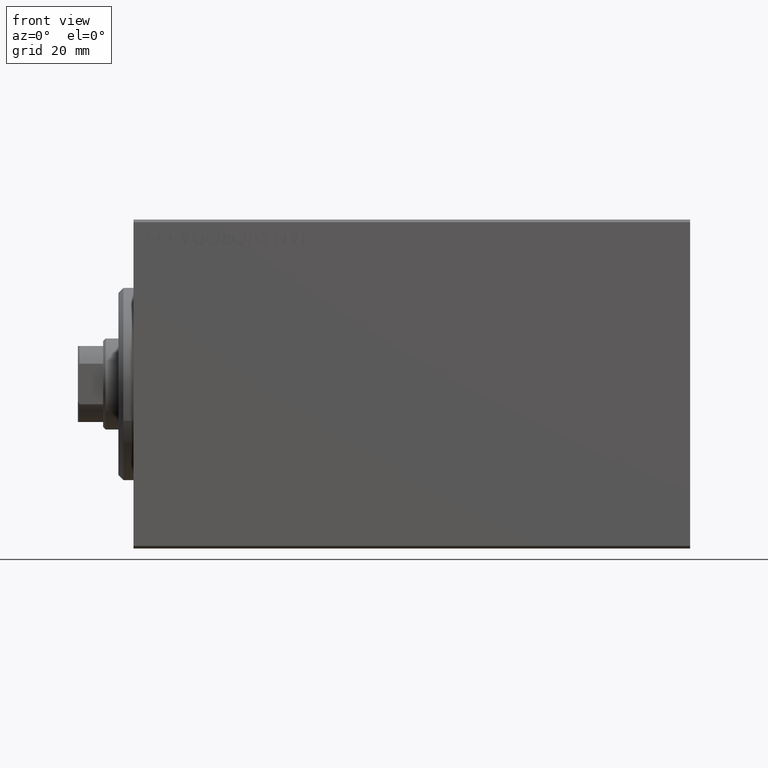
[diagram: clean part render]
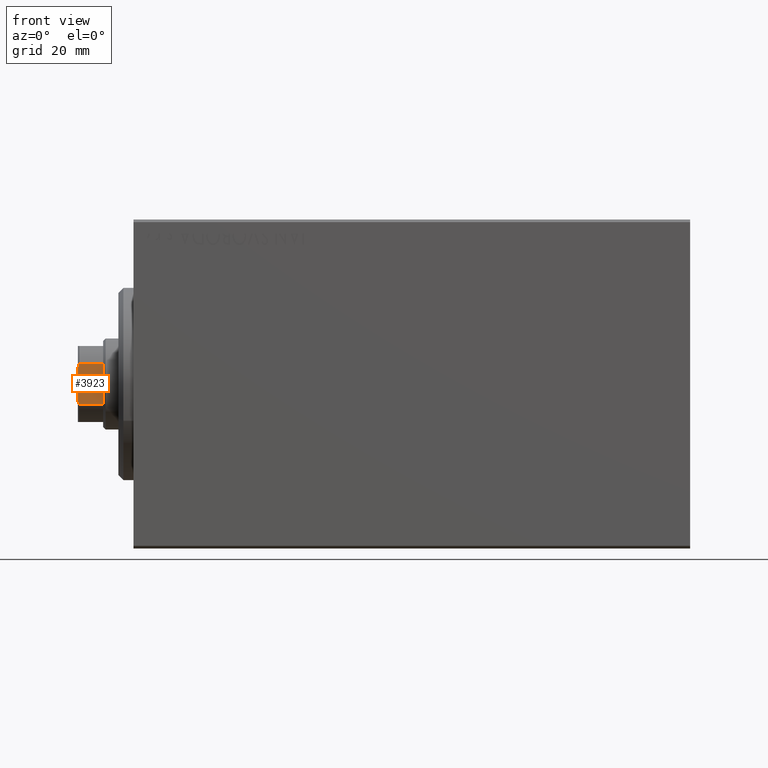
[diagram: same view with one face highlighted and labeled with its STEP entity id]
A machine part, front view. The second image highlights one B-rep face of the part: STEP entity #3923.
In plain terms, the highlighted planar face has unit normal (0, 1, 0).
Its self-contained STEP definition (entity closure, byte-faithful):
#778 = VERTEX_POINT ( 'NONE', #14618 ) ;
#916 = ORIENTED_EDGE ( 'NONE', *, *, #20991, .F. ) ;
#1426 = AXIS2_PLACEMENT_3D ( 'NONE', #9849, #26474, #32677 ) ;
#2591 = CARTESIAN_POINT ( 'NONE',  ( 3.546278369582405166, -7.499999999999998224, 114.9065454484563134 ) ) ;
#2987 = EDGE_CURVE ( 'NONE', #778, #28652, #37544, .T. ) ;
#3848 = EDGE_CURVE ( 'NONE', #32033, #25374, #29147, .T. ) ;
#3874 = EDGE_CURVE ( 'NONE', #778, #6357, #16008, .T. ) ;
#3923 = ADVANCED_FACE ( 'NONE', ( #12529 ), #39530, .F. ) ;
#6357 = VERTEX_POINT ( 'NONE', #12681 ) ;
#7999 = ORIENTED_EDGE ( 'NONE', *, *, #3874, .T. ) ;
#8211 = LINE ( 'NONE', #24833, #42780 ) ;
#9200 = CARTESIAN_POINT ( 'NONE',  ( -3.315116890850273723, -7.499999999999998224, 115.0000000000000000 ) ) ;
#9849 = CARTESIAN_POINT ( 'NONE',  ( -7.499999999999999112, -7.499999999999998224, 115.0000000000000000 ) ) ;
#9999 = CARTESIAN_POINT ( 'NONE',  ( -4.000000000000000000, -7.500000000000000888, 109.9999999999999858 ) ) ;
#11025 = CARTESIAN_POINT ( 'NONE',  ( 4.000000000000000000, -7.500000000000000888, 109.9999999999999858 ) ) ;
#12319 = CARTESIAN_POINT ( 'NONE',  ( -4.000000000000000000, -7.500000000000000888, 114.7000000000000313 ) ) ;
#12529 = FACE_OUTER_BOUND ( 'NONE', #36806, .T. ) ;
#12570 = CARTESIAN_POINT ( 'NONE',  ( 3.315116890850167586, -7.499999999999996447, 115.0000000000000000 ) ) ;
#12681 = CARTESIAN_POINT ( 'NONE',  ( -4.000000000000000000, -7.500000000000000888, 114.7000000000000313 ) ) ;
#13179 = DIRECTION ( 'NONE',  ( -0.000000000000000000, -0.000000000000000000, 1.000000000000000000 ) ) ;
#14618 = CARTESIAN_POINT ( 'NONE',  ( -3.315116890850273723, -7.499999999999998224, 115.0000000000000000 ) ) ;
#16008 = B_SPLINE_CURVE_WITH_KNOTS ( 'NONE', 3,
 ( #9200, #32891, #16500, #12319 ),
 .UNSPECIFIED., .F., .F.,
 ( 4, 4 ),
 ( 1.301042606982605321E-18, 0.0007477064084241745803 ),
 .UNSPECIFIED. ) ;
#16500 = CARTESIAN_POINT ( 'NONE',  ( -3.774404943294813908, -7.499999999999998224, 114.8061623796260591 ) ) ;
#19093 = DIRECTION ( 'NONE',  ( -0.000000000000000000, -0.000000000000000000, 1.000000000000000000 ) ) ;
#20501 = CARTESIAN_POINT ( 'NONE',  ( -7.499999999999999112, -7.499999999999998224, 115.0000000000000000 ) ) ;
#20991 = EDGE_CURVE ( 'NONE', #38825, #6357, #26183, .T. ) ;
#23399 = DIRECTION ( 'NONE',  ( 1.000000000000000000, 0.000000000000000000, 0.000000000000000000 ) ) ;
#24833 = CARTESIAN_POINT ( 'NONE',  ( -7.499999999999999112, -7.499999999999998224, 110.0000000000000000 ) ) ;
#25374 = VERTEX_POINT ( 'NONE', #36469 ) ;
#25524 = EDGE_CURVE ( 'NONE', #25374, #28652, #43501, .T. ) ;
#25728 = ORIENTED_EDGE ( 'NONE', *, *, #25524, .T. ) ;
#26183 = LINE ( 'NONE', #32600, #36182 ) ;
#26474 = DIRECTION ( 'NONE',  ( 0.000000000000000000, 1.000000000000000000, 0.000000000000000000 ) ) ;
#27587 = VECTOR ( 'NONE', #13179, 1000.000000000000000 ) ;
#28652 = VERTEX_POINT ( 'NONE', #43046 ) ;
#29147 = LINE ( 'NONE', #36209, #27587 ) ;
#29402 = CARTESIAN_POINT ( 'NONE',  ( 4.000000000000000000, -7.500000000000000888, 114.7000000000000028 ) ) ;
#32033 = VERTEX_POINT ( 'NONE', #11025 ) ;
#32600 = CARTESIAN_POINT ( 'NONE',  ( -4.000000000000000000, -7.500000000000000888, -0.001000000000001000089 ) ) ;
#32677 = DIRECTION ( 'NONE',  ( 0.000000000000000000, -0.000000000000000000, 1.000000000000000000 ) ) ;
#32891 = CARTESIAN_POINT ( 'NONE',  ( -3.546278369582431367, -7.499999999999998224, 114.9065454484562281 ) ) ;
#36182 = VECTOR ( 'NONE', #19093, 1000.000000000000000 ) ;
#36202 = EDGE_CURVE ( 'NONE', #38825, #32033, #8211, .T. ) ;
#36209 = CARTESIAN_POINT ( 'NONE',  ( 4.000000000000000000, -7.500000000000000888, -0.001000000000001000089 ) ) ;
#36367 = ORIENTED_EDGE ( 'NONE', *, *, #36202, .T. ) ;
#36469 = CARTESIAN_POINT ( 'NONE',  ( 4.000000000000000000, -7.500000000000000888, 114.7000000000000028 ) ) ;
#36806 = EDGE_LOOP ( 'NONE', ( #41227, #25728, #43030, #7999, #916, #36367 ) ) ;
#37425 = VECTOR ( 'NONE', #23399, 1000.000000000000000 ) ;
#37544 = LINE ( 'NONE', #20501, #37425 ) ;
#38825 = VERTEX_POINT ( 'NONE', #9999 ) ;
#39530 = PLANE ( 'NONE',  #1426 ) ;
#41227 = ORIENTED_EDGE ( 'NONE', *, *, #3848, .T. ) ;
#42526 = DIRECTION ( 'NONE',  ( 1.000000000000000000, 0.000000000000000000, 0.000000000000000000 ) ) ;
#42780 = VECTOR ( 'NONE', #42526, 1000.000000000000000 ) ;
#42898 = CARTESIAN_POINT ( 'NONE',  ( 3.774404943294763726, -7.500000000000000888, 114.8061623796259880 ) ) ;
#43030 = ORIENTED_EDGE ( 'NONE', *, *, #2987, .F. ) ;
#43046 = CARTESIAN_POINT ( 'NONE',  ( 3.315116890850167586, -7.499999999999996447, 115.0000000000000000 ) ) ;
#43501 = B_SPLINE_CURVE_WITH_KNOTS ( 'NONE', 3,
 ( #29402, #42898, #2591, #12570 ),
 .UNSPECIFIED., .F., .F.,
 ( 4, 4 ),
 ( 0.000000000000000000, 0.0007477064084242874458 ),
 .UNSPECIFIED. ) ;